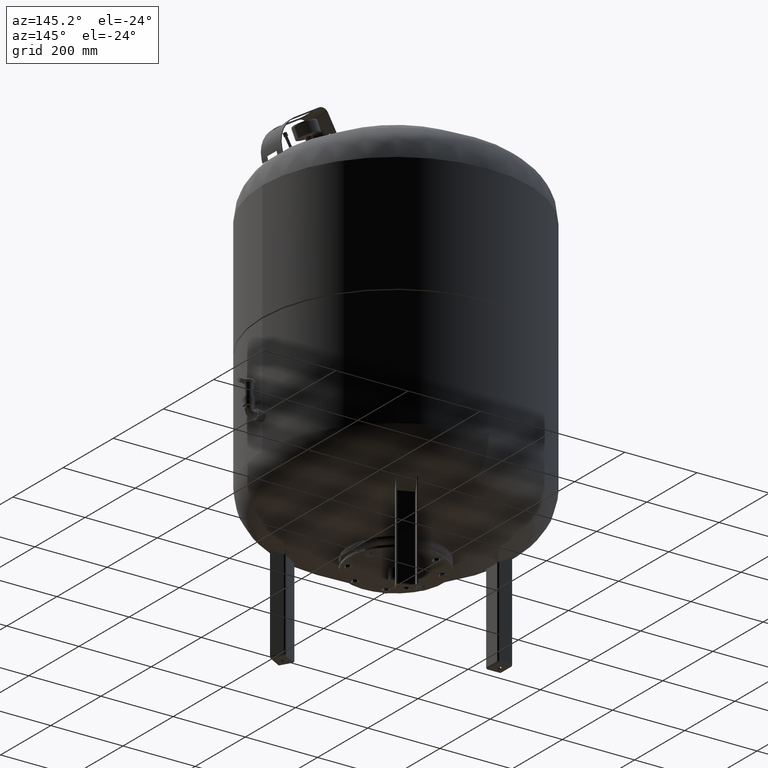
[diagram: clean part render]
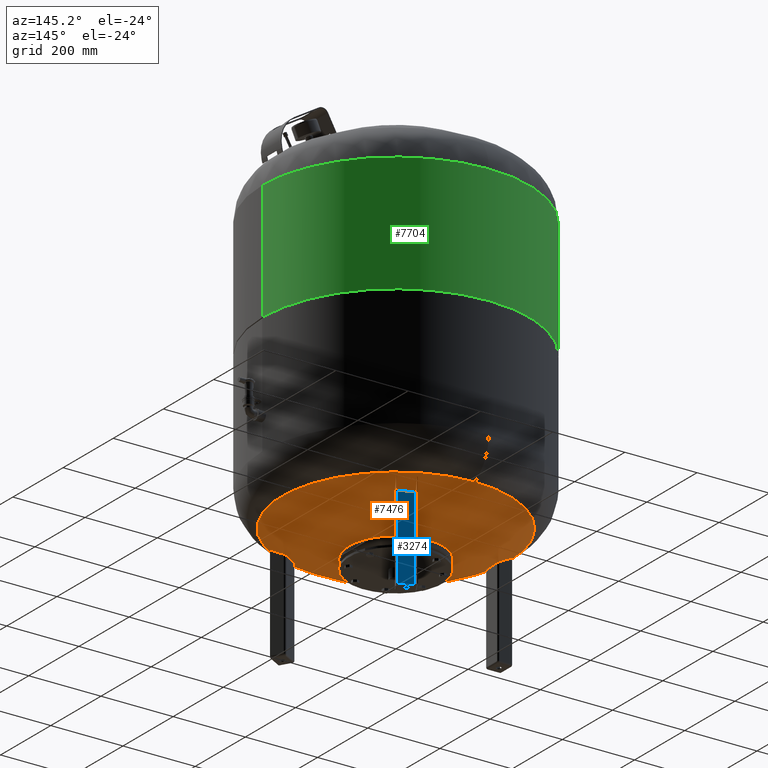
[diagram: same view with three faces highlighted in distinct colors, each labeled with its STEP entity id]
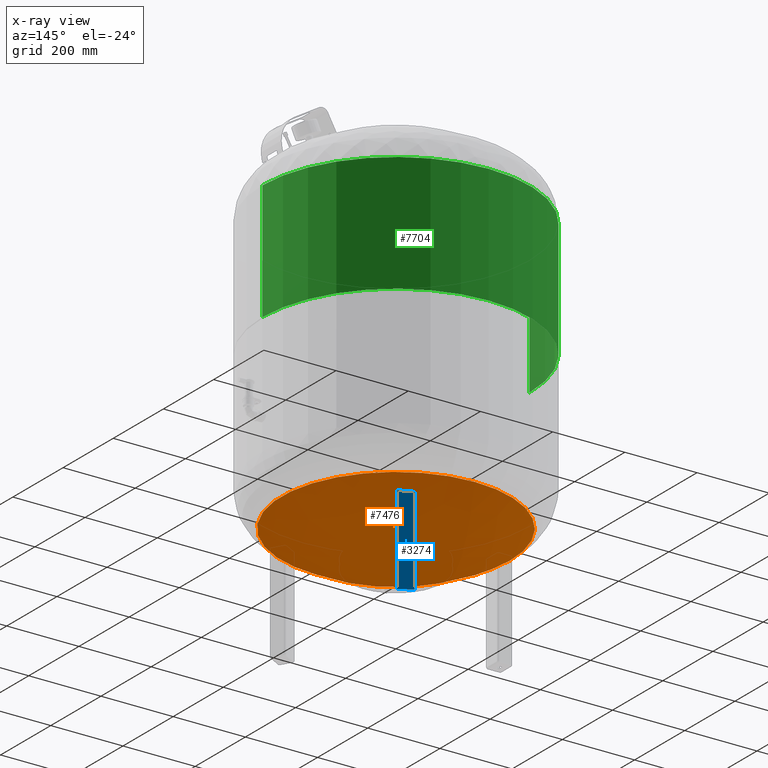
[diagram: x-ray of the same camera — body ghosted, the three highlighted faces saturated]
A machine part, auxiliary view with three faces highlighted in distinct colors.
The next image is the same camera in x-ray (body ghosted, the three faces saturated) — at least one of them is partly hidden behind the body in this view.
Their STEP definitions:

[orange] entity #7476 — the highlighted spherical surface has radius 594 mm.
#7415=CARTESIAN_POINT('',(0.0,-315.931034482758610,274.985505725079410));
#7416=VERTEX_POINT('',#7415);
#7432=CARTESIAN_POINT('',(-3.868912E-014,315.931034482758610,274.985505725079630));
#7433=VERTEX_POINT('',#7432);
#7441=CARTESIAN_POINT('',(-315.931034482758610,-1.671377E-014,274.985505725079520));
#7442=VERTEX_POINT('',#7441);
#7443=CARTESIAN_POINT('',(0.0,-1.671377E-014,274.985505725079520));
#7444=DIRECTION('',(0.0,0.0,1.0));
#7445=DIRECTION('',(-1.0,0.0,0.0));
#7446=AXIS2_PLACEMENT_3D('',#7443,#7444,#7445);
#7447=CIRCLE('',#7446,315.931034482758610);
#7448=EDGE_CURVE('',#7433,#7442,#7447,.T.);
#7450=CARTESIAN_POINT('',(0.0,-1.671377E-014,274.985505725079520));
#7451=DIRECTION('',(0.0,0.0,1.0));
#7452=DIRECTION('',(-1.0,0.0,0.0));
#7453=AXIS2_PLACEMENT_3D('',#7450,#7451,#7452);
#7454=CIRCLE('',#7453,315.931034482758610);
#7455=EDGE_CURVE('',#7442,#7416,#7454,.T.);
#7460=CARTESIAN_POINT('',(0.0,-1.091160E-013,778.0));
#7461=DIRECTION('',(0.0,-1.0,0.0));
#7462=DIRECTION('',(1.0,0.0,0.0));
#7463=AXIS2_PLACEMENT_3D('',#7460,#7461,#7462);
#7464=SPHERICAL_SURFACE('',#7463,594.0);
#7465=ORIENTED_EDGE('',*,*,#7455,.F.);
#7466=ORIENTED_EDGE('',*,*,#7448,.F.);
#7467=CARTESIAN_POINT('',(0.0,-1.671377E-014,274.985505725079520));
#7468=DIRECTION('',(0.0,0.0,1.0));
#7469=DIRECTION('',(-1.0,0.0,0.0));
#7470=AXIS2_PLACEMENT_3D('',#7467,#7468,#7469);
#7471=CIRCLE('',#7470,315.931034482758610);
#7472=EDGE_CURVE('',#7416,#7433,#7471,.T.);
#7473=ORIENTED_EDGE('',*,*,#7472,.F.);
#7474=EDGE_LOOP('',(#7465,#7466,#7473));
#7475=FACE_OUTER_BOUND('',#7474,.T.);
#7476=ADVANCED_FACE('',(#7475),#7464,.T.);

[blue] entity #3274 — the highlighted planar face has unit normal (-0.5, -0.866, -0).
#2327=CARTESIAN_POINT('',(151.070508075688790,221.661795512337310,274.0));
#2328=VERTEX_POINT('',#2327);
#2336=CARTESIAN_POINT('',(116.429491924311250,241.661795512337310,274.0));
#2337=VERTEX_POINT('',#2336);
#2338=CARTESIAN_POINT('',(116.429491924311250,241.661795512337310,274.0));
#2339=DIRECTION('',(0.866025403784439,-0.500000000000000,0.0));
#2340=VECTOR('',#2339,40.0);
#2341=LINE('',#2338,#2340);
#2342=EDGE_CURVE('',#2337,#2328,#2341,.T.);
#2879=CARTESIAN_POINT('',(116.429491924311260,241.661795512337310,4.500000000000004));
#2880=VERTEX_POINT('',#2879);
#2888=CARTESIAN_POINT('',(151.070508075688790,221.661795512337310,4.499999999999996));
#2889=VERTEX_POINT('',#2888);
#2890=CARTESIAN_POINT('',(116.429491924311260,241.661795512337310,4.500000000000004));
#2891=DIRECTION('',(0.866025403784438,-0.500000000000000,-1.776357E-016));
#2892=VECTOR('',#2891,39.999999999999986);
#2893=LINE('',#2890,#2892);
#2894=EDGE_CURVE('',#2880,#2889,#2893,.T.);
#3247=CARTESIAN_POINT('',(151.070508075688790,221.661795512337310,4.499999999999996));
#3248=DIRECTION('',(0.0,0.0,1.0));
#3249=VECTOR('',#3248,269.500000000000000);
#3250=LINE('',#3247,#3249);
#3251=EDGE_CURVE('',#2889,#2328,#3250,.T.);
#3258=CARTESIAN_POINT('',(153.235571585149900,220.411795512337310,1.999999999999996));
#3259=DIRECTION('',(-0.500000000000000,-0.866025403784439,-5.438524E-032));
#3260=DIRECTION('',(0.866025403784439,-0.500000000000000,-1.836970E-016));
#3261=AXIS2_PLACEMENT_3D('',#3258,#3259,#3260);
#3262=PLANE('',#3261);
#3263=ORIENTED_EDGE('',*,*,#2894,.F.);
#3264=CARTESIAN_POINT('',(116.429491924311250,241.661795512337310,274.0));
#3265=DIRECTION('',(0.0,0.0,-1.0));
#3266=VECTOR('',#3265,269.500000000000000);
#3267=LINE('',#3264,#3266);
#3268=EDGE_CURVE('',#2337,#2880,#3267,.T.);
#3269=ORIENTED_EDGE('',*,*,#3268,.F.);
#3270=ORIENTED_EDGE('',*,*,#2342,.T.);
#3271=ORIENTED_EDGE('',*,*,#3251,.F.);
#3272=EDGE_LOOP('',(#3263,#3269,#3270,#3271));
#3273=FACE_OUTER_BOUND('',#3272,.T.);
#3274=ADVANCED_FACE('',(#3273),#3262,.F.);

[green] entity #7704 — the highlighted cylindrical surface (partial cylindrical patch) has radius 370 mm, axis along (0, 0, 1).
#7574=CARTESIAN_POINT('',(370.0,0.0,1035.0));
#7575=VERTEX_POINT('',#7574);
#7576=CARTESIAN_POINT('',(369.999999999999770,0.0,707.0));
#7577=VERTEX_POINT('',#7576);
#7578=CARTESIAN_POINT('',(370.0,0.0,1035.0));
#7579=DIRECTION('',(0.0,0.0,-1.0));
#7580=VECTOR('',#7579,328.0);
#7581=LINE('',#7578,#7580);
#7582=EDGE_CURVE('',#7575,#7577,#7581,.T.);
#7584=CARTESIAN_POINT('',(-370.0,-4.531044E-014,1035.0));
#7585=VERTEX_POINT('',#7584);
#7593=CARTESIAN_POINT('',(-369.999999999999770,-4.531044E-014,707.0));
#7594=VERTEX_POINT('',#7593);
#7595=CARTESIAN_POINT('',(-370.0,-4.531044E-014,1035.0));
#7596=DIRECTION('',(0.0,0.0,-1.0));
#7597=VECTOR('',#7596,328.0);
#7598=LINE('',#7595,#7597);
#7599=EDGE_CURVE('',#7585,#7594,#7598,.T.);
#7677=CARTESIAN_POINT('',(1.535702E-016,0.0,707.0));
#7678=DIRECTION('',(0.0,0.0,1.0));
#7679=DIRECTION('',(1.0,0.0,0.0));
#7680=AXIS2_PLACEMENT_3D('',#7677,#7678,#7679);
#7681=CIRCLE('',#7680,369.999999999999770);
#7682=EDGE_CURVE('',#7577,#7594,#7681,.T.);
#7687=CARTESIAN_POINT('',(1.668796E-014,0.0,1032.500000000000000));
#7688=DIRECTION('',(0.0,0.0,1.0));
#7689=DIRECTION('',(1.0,0.0,0.0));
#7690=AXIS2_PLACEMENT_3D('',#7687,#7688,#7689);
#7691=CYLINDRICAL_SURFACE('',#7690,370.0);
#7692=ORIENTED_EDGE('',*,*,#7582,.T.);
#7693=ORIENTED_EDGE('',*,*,#7682,.T.);
#7694=ORIENTED_EDGE('',*,*,#7599,.F.);
#7695=CARTESIAN_POINT('',(1.668796E-014,0.0,1035.0));
#7696=DIRECTION('',(0.0,0.0,1.0));
#7697=DIRECTION('',(1.0,0.0,0.0));
#7698=AXIS2_PLACEMENT_3D('',#7695,#7696,#7697);
#7699=CIRCLE('',#7698,370.0);
#7700=EDGE_CURVE('',#7575,#7585,#7699,.T.);
#7701=ORIENTED_EDGE('',*,*,#7700,.F.);
#7702=EDGE_LOOP('',(#7692,#7693,#7694,#7701));
#7703=FACE_OUTER_BOUND('',#7702,.T.);
#7704=ADVANCED_FACE('',(#7703),#7691,.T.);